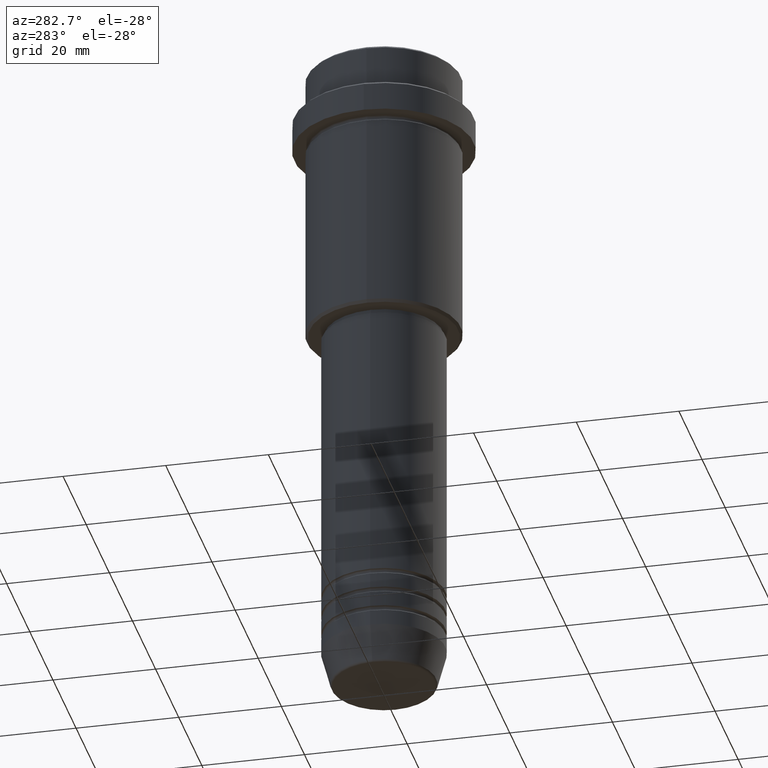
[diagram: clean part render]
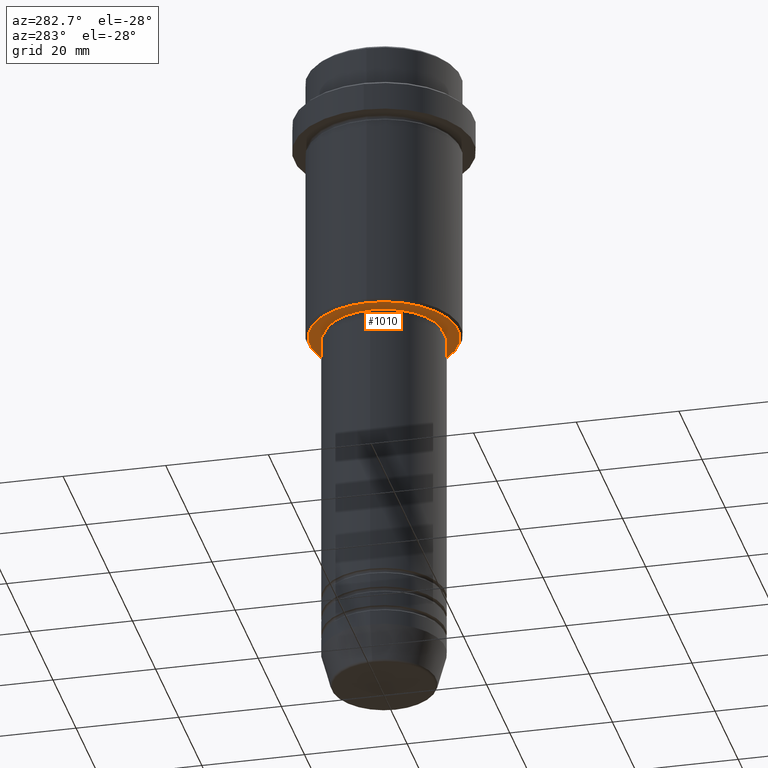
[diagram: same view with one face highlighted and labeled with its STEP entity id]
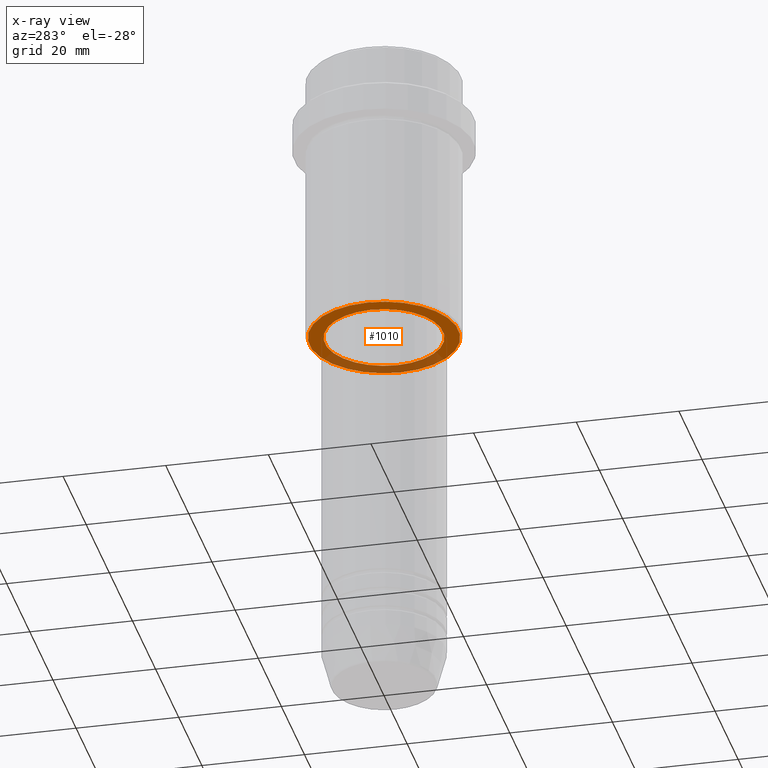
[diagram: x-ray of the same camera — body ghosted, the highlighted face saturated]
A machine part, auxiliary view. The second image highlights one B-rep face of the part: STEP entity #1010.
The next image is the same camera in x-ray: the body ghosted, the highlighted face saturated — about 31% of this face is hidden behind the body in this view.
In plain terms, the highlighted planar face has unit normal (0, 0, -1).
Its self-contained STEP definition (entity closure, byte-faithful):
#20 = AXIS2_PLACEMENT_3D ( 'NONE', #814, #1242, #59 ) ;
#59 = DIRECTION ( 'NONE',  ( -1.000000000000000000, 0.000000000000000000, 0.000000000000000000 ) ) ;
#61 = DIRECTION ( 'NONE',  ( -1.000000000000000000, 0.000000000000000000, 0.000000000000000000 ) ) ;
#92 = EDGE_CURVE ( 'NONE', #1064, #677, #363, .T. ) ;
#120 = VERTEX_POINT ( 'NONE', #530 ) ;
#124 = CIRCLE ( 'NONE', #1196, 14.50000000000002487 ) ;
#168 = FACE_BOUND ( 'NONE', #989, .T. ) ;
#176 = DIRECTION ( 'NONE',  ( 0.000000000000000000, 0.000000000000000000, -1.000000000000000000 ) ) ;
#275 = CARTESIAN_POINT ( 'NONE',  ( 0.000000000000000000, 0.000000000000000000, -54.99999999999999289 ) ) ;
#309 = DIRECTION ( 'NONE',  ( -1.000000000000000000, 0.000000000000000000, -0.000000000000000000 ) ) ;
#317 = DIRECTION ( 'NONE',  ( 0.000000000000000000, 0.000000000000000000, -1.000000000000000000 ) ) ;
#337 = EDGE_CURVE ( 'NONE', #677, #1064, #1041, .T. ) ;
#363 = CIRCLE ( 'NONE', #976, 11.49999999999999467 ) ;
#395 = ORIENTED_EDGE ( 'NONE', *, *, #337, .T. ) ;
#474 = CIRCLE ( 'NONE', #20, 14.50000000000002487 ) ;
#521 = EDGE_CURVE ( 'NONE', #1267, #120, #474, .T. ) ;
#526 = DIRECTION ( 'NONE',  ( -0.000000000000000000, -0.000000000000000000, 1.000000000000000000 ) ) ;
#528 = CARTESIAN_POINT ( 'NONE',  ( 0.000000000000000000, 15.00000000000000000, -54.99999999999999289 ) ) ;
#530 = CARTESIAN_POINT ( 'NONE',  ( -14.50000000000002487, 1.806354028742347380E-15, -54.99999999999999289 ) ) ;
#561 = EDGE_LOOP ( 'NONE', ( #866, #823 ) ) ;
#571 = CARTESIAN_POINT ( 'NONE',  ( 11.49999999999999467, 0.000000000000000000, -54.99999999999998579 ) ) ;
#606 = ORIENTED_EDGE ( 'NONE', *, *, #92, .T. ) ;
#640 = DIRECTION ( 'NONE',  ( -0.000000000000000000, -0.000000000000000000, 1.000000000000000000 ) ) ;
#677 = VERTEX_POINT ( 'NONE', #1226 ) ;
#695 = AXIS2_PLACEMENT_3D ( 'NONE', #528, #317, #309 ) ;
#814 = CARTESIAN_POINT ( 'NONE',  ( 0.000000000000000000, 0.000000000000000000, -54.99999999999999289 ) ) ;
#821 = DIRECTION ( 'NONE',  ( 1.000000000000000000, 0.000000000000000000, 0.000000000000000000 ) ) ;
#823 = ORIENTED_EDGE ( 'NONE', *, *, #972, .T. ) ;
#827 = CARTESIAN_POINT ( 'NONE',  ( 0.000000000000000000, 0.000000000000000000, -54.99999999999998579 ) ) ;
#842 = CARTESIAN_POINT ( 'NONE',  ( 14.50000000000002487, 0.000000000000000000, -54.99999999999999289 ) ) ;
#843 = DIRECTION ( 'NONE',  ( 1.000000000000000000, 0.000000000000000000, 0.000000000000000000 ) ) ;
#866 = ORIENTED_EDGE ( 'NONE', *, *, #521, .T. ) ;
#929 = PLANE ( 'NONE',  #695 ) ;
#931 = CARTESIAN_POINT ( 'NONE',  ( 0.000000000000000000, 0.000000000000000000, -54.99999999999998579 ) ) ;
#972 = EDGE_CURVE ( 'NONE', #120, #1267, #124, .T. ) ;
#976 = AXIS2_PLACEMENT_3D ( 'NONE', #931, #640, #821 ) ;
#989 = EDGE_LOOP ( 'NONE', ( #606, #395 ) ) ;
#1010 = ADVANCED_FACE ( 'NONE', ( #1142, #168 ), #929, .T. ) ;
#1041 = CIRCLE ( 'NONE', #1230, 11.49999999999999467 ) ;
#1064 = VERTEX_POINT ( 'NONE', #571 ) ;
#1142 = FACE_OUTER_BOUND ( 'NONE', #561, .T. ) ;
#1196 = AXIS2_PLACEMENT_3D ( 'NONE', #275, #176, #61 ) ;
#1226 = CARTESIAN_POINT ( 'NONE',  ( -11.49999999999999467, 1.408343819019455781E-15, -54.99999999999998579 ) ) ;
#1230 = AXIS2_PLACEMENT_3D ( 'NONE', #827, #526, #843 ) ;
#1242 = DIRECTION ( 'NONE',  ( 0.000000000000000000, 0.000000000000000000, -1.000000000000000000 ) ) ;
#1267 = VERTEX_POINT ( 'NONE', #842 ) ;